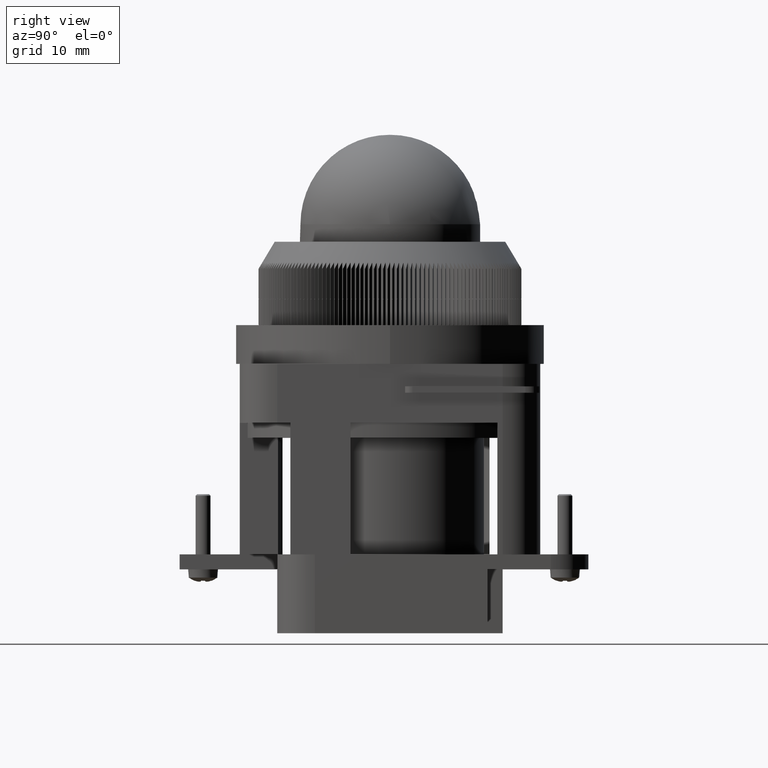
[diagram: clean part render]
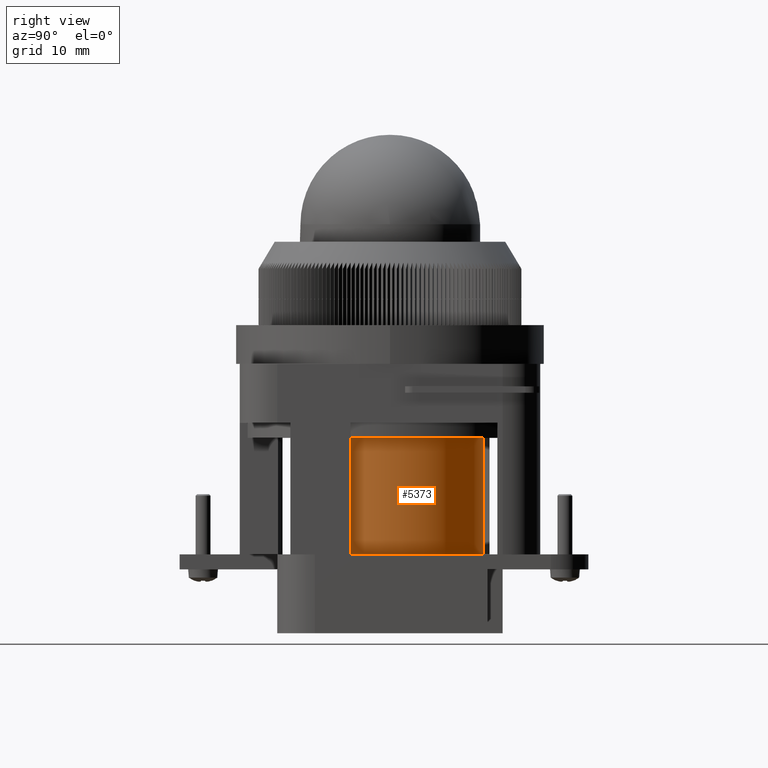
[diagram: same view with one face highlighted and labeled with its STEP entity id]
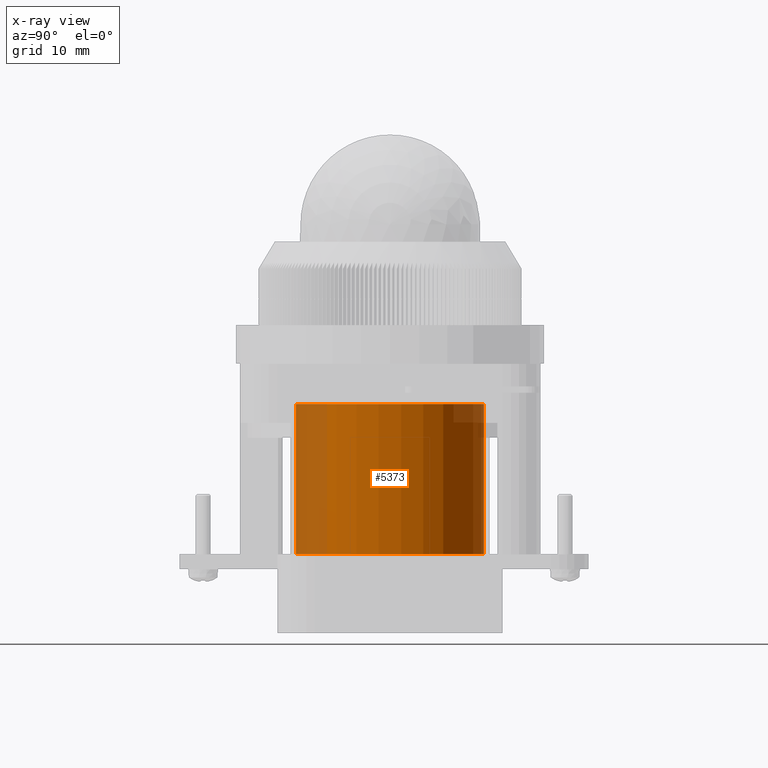
[diagram: x-ray of the same camera — body ghosted, the highlighted face saturated]
A machine part, right view. The second image highlights one B-rep face of the part: STEP entity #5373.
The next image is the same camera in x-ray: the body ghosted, the highlighted face saturated — about 19% of this face is hidden behind the body in this view.
In plain terms, the highlighted cylindrical surface (bore or boss wall) has radius 12.5 mm, axis along (-0, -0, 1).
Its self-contained STEP definition (entity closure, byte-faithful):
#5346=CARTESIAN_POINT('',(-10.489518762186043,-1.565968312032768,10.500000000000000));
#5347=DIRECTION('',(0.0,0.0,-1.0));
#5348=DIRECTION('',(-1.0,0.0,0.0));
#5349=AXIS2_PLACEMENT_3D('',#5346,#5347,#5348);
#5350=CYLINDRICAL_SURFACE('',#5349,12.500000000000000);
#5351=CARTESIAN_POINT('',(2.010481237813957,-1.565968312032766,-19.999999999999996));
#5352=VERTEX_POINT('',#5351);
#5353=CARTESIAN_POINT('',(-10.489518762186043,-1.565968312032768,-19.999999999999996));
#5354=DIRECTION('',(0.0,0.0,1.0));
#5355=DIRECTION('',(-1.0,0.0,0.0));
#5356=AXIS2_PLACEMENT_3D('',#5353,#5354,#5355);
#5357=CIRCLE('',#5356,12.500000000000000);
#5358=EDGE_CURVE('',#5352,#5352,#5357,.T.);
#5359=ORIENTED_EDGE('',*,*,#5358,.T.);
#5360=EDGE_LOOP('',(#5359));
#5361=FACE_OUTER_BOUND('',#5360,.T.);
#5362=CARTESIAN_POINT('',(2.010481237813957,-1.565968312032766,0.0));
#5363=VERTEX_POINT('',#5362);
#5364=CARTESIAN_POINT('',(-10.489518762186043,-1.565968312032768,0.0));
#5365=DIRECTION('',(0.0,0.0,1.0));
#5366=DIRECTION('',(-1.0,0.0,0.0));
#5367=AXIS2_PLACEMENT_3D('',#5364,#5365,#5366);
#5368=CIRCLE('',#5367,12.500000000000000);
#5369=EDGE_CURVE('',#5363,#5363,#5368,.T.);
#5370=ORIENTED_EDGE('',*,*,#5369,.F.);
#5371=EDGE_LOOP('',(#5370));
#5372=FACE_BOUND('',#5371,.T.);
#5373=ADVANCED_FACE('',(#5361,#5372),#5350,.T.);